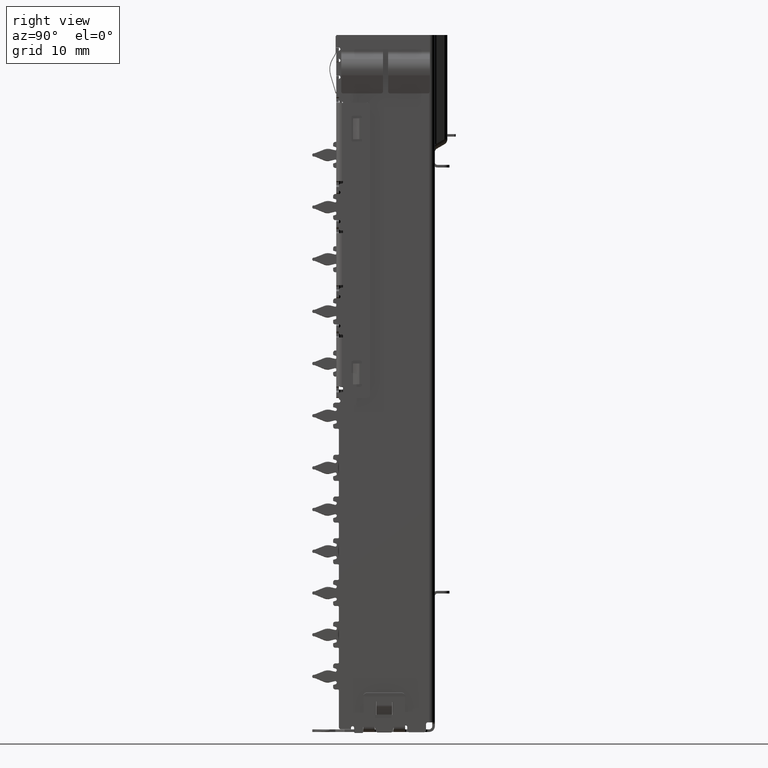
[diagram: clean part render]
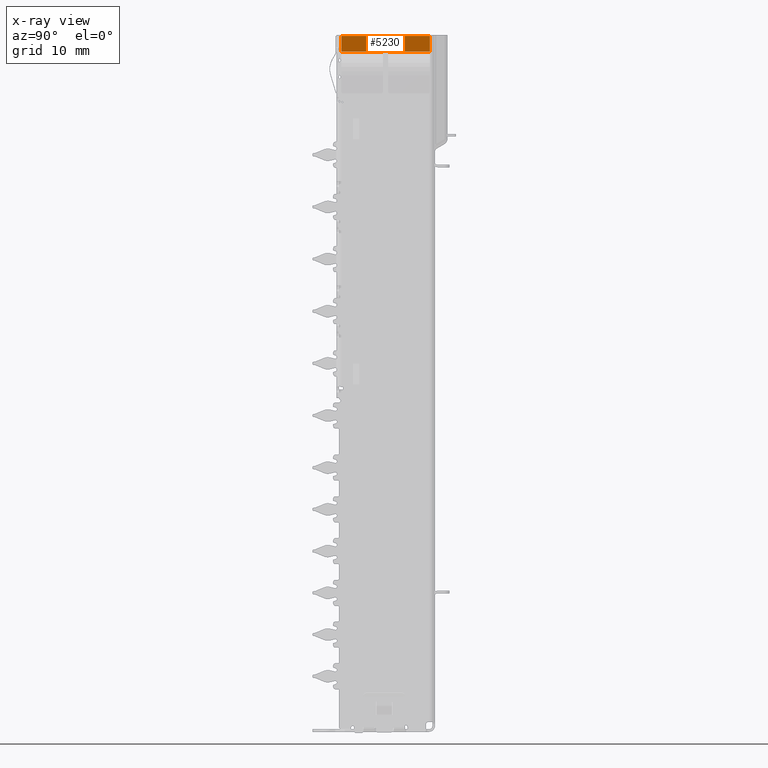
[diagram: x-ray — body ghosted, one internal face saturated and labeled with its STEP entity id]
A machine part, right view, then the same camera in x-ray: the body is ghosted and one INTERNAL B-rep face — a face not visible from any outside direction — is saturated and labeled: STEP entity #5230.
In plain terms, the highlighted planar face has unit normal (1, -0, -0).
Its self-contained STEP definition (entity closure, byte-faithful):
#96 = CARTESIAN_POINT ( 'NONE',  ( 6.700000000000001066, 0.0000000000000000000, -1.499999999999999556 ) ) ;
#986 = ORIENTED_EDGE ( 'NONE', *, *, #33960, .F. ) ;
#1887 = DIRECTION ( 'NONE',  ( -2.888894916580853437E-33, 1.000000000000000000, -6.162975822039154730E-33 ) ) ;
#1928 = VERTEX_POINT ( 'NONE', #31847 ) ;
#2055 = LINE ( 'NONE', #32435, #51634 ) ;
#2411 = VECTOR ( 'NONE', #28611, 1000.000000000000000 ) ;
#2728 = VERTEX_POINT ( 'NONE', #45399 ) ;
#2963 = EDGE_CURVE ( 'NONE', #15793, #49822, #25575, .T. ) ;
#2976 = ORIENTED_EDGE ( 'NONE', *, *, #56904, .F. ) ;
#3548 = LINE ( 'NONE', #12204, #33577 ) ;
#4764 = ORIENTED_EDGE ( 'NONE', *, *, #35933, .F. ) ;
#5015 = VECTOR ( 'NONE', #23570, 1000.000000000000000 ) ;
#5169 = VECTOR ( 'NONE', #17317, 1000.000000000000000 ) ;
#5230 = ADVANCED_FACE ( 'NONE', ( #43498 ), #42486, .F. ) ;
#6786 = CARTESIAN_POINT ( 'NONE',  ( -0.2499999999999985012, 0.0000000000000000000, -5.706862796132720739 ) ) ;
#7141 = LINE ( 'NONE', #14993, #5015 ) ;
#7291 = ORIENTED_EDGE ( 'NONE', *, *, #37775, .F. ) ;
#10346 = EDGE_LOOP ( 'NONE', ( #986, #45847, #4764, #7291, #24273, #2976, #49695, #12385 ) ) ;
#12204 = CARTESIAN_POINT ( 'NONE',  ( -4.249999999999996447, -8.673617379884035472E-16, -5.706862796132720739 ) ) ;
#12255 = VECTOR ( 'NONE', #40503, 1000.000000000000000 ) ;
#12385 = ORIENTED_EDGE ( 'NONE', *, *, #49535, .F. ) ;
#14993 = CARTESIAN_POINT ( 'NONE',  ( 6.700000000000001066, 0.0000000000000000000, -1.499999999999999556 ) ) ;
#15793 = VERTEX_POINT ( 'NONE', #16742 ) ;
#16742 = CARTESIAN_POINT ( 'NONE',  ( 0.2500000000000036637, 0.0000000000000000000, -1.500000000000000666 ) ) ;
#17317 = DIRECTION ( 'NONE',  ( -2.037560944591366943E-16, -6.162975822039154730E-33, -1.000000000000000000 ) ) ;
#18637 = CARTESIAN_POINT ( 'NONE',  ( 4.250000000000003553, 0.0000000000000000000, -1.499999999999999556 ) ) ;
#19169 = VERTEX_POINT ( 'NONE', #38175 ) ;
#19411 = CARTESIAN_POINT ( 'NONE',  ( -4.249999999999996447, 4.336808689942017736E-15, -1.499999999999997558 ) ) ;
#23570 = DIRECTION ( 'NONE',  ( -1.000000000000000000, 2.888894916580853780E-33, 0.0000000000000000000 ) ) ;
#24273 = ORIENTED_EDGE ( 'NONE', *, *, #57120, .F. ) ;
#25575 = LINE ( 'NONE', #29726, #32579 ) ;
#27452 = DIRECTION ( 'NONE',  ( 2.888894916580853437E-33, -1.000000000000000000, -6.162975822039154730E-33 ) ) ;
#27488 = LINE ( 'NONE', #39398, #5169 ) ;
#28611 = DIRECTION ( 'NONE',  ( -2.037560944591366943E-16, -6.162975822039154730E-33, -1.000000000000000000 ) ) ;
#29642 = CIRCLE ( 'NONE', #48624, 0.2500000000000002220 ) ;
#29726 = CARTESIAN_POINT ( 'NONE',  ( 0.2500000000000019429, 0.0000000000000000000, -5.706862796132720739 ) ) ;
#30616 = VERTEX_POINT ( 'NONE', #19411 ) ;
#31847 = CARTESIAN_POINT ( 'NONE',  ( -0.2499999999999985012, 0.0000000000000000000, -1.449999999999999067 ) ) ;
#32435 = CARTESIAN_POINT ( 'NONE',  ( 6.700000000000001066, -8.673617379884035472E-16, 0.0000000000000000000 ) ) ;
#32579 = VECTOR ( 'NONE', #56515, 1000.000000000000000 ) ;
#33273 = LINE ( 'NONE', #96, #12255 ) ;
#33577 = VECTOR ( 'NONE', #34090, 1000.000000000000000 ) ;
#33960 = EDGE_CURVE ( 'NONE', #19169, #55495, #27488, .T. ) ;
#34090 = DIRECTION ( 'NONE',  ( 2.037560944591366943E-16, 6.162975822039154730E-33, 1.000000000000000000 ) ) ;
#34676 = VERTEX_POINT ( 'NONE', #37585 ) ;
#35933 = EDGE_CURVE ( 'NONE', #30616, #2728, #3548, .T. ) ;
#37585 = CARTESIAN_POINT ( 'NONE',  ( -0.2499999999999967526, 0.0000000000000000000, -1.500000000000000444 ) ) ;
#37775 = EDGE_CURVE ( 'NONE', #34676, #30616, #33273, .T. ) ;
#37972 = DIRECTION ( 'NONE',  ( 0.0000000000000000000, 6.162975822039154730E-33, 1.000000000000000000 ) ) ;
#38175 = CARTESIAN_POINT ( 'NONE',  ( 4.250000000000001776, -8.673617379884035472E-16, 0.0000000000000000000 ) ) ;
#39398 = CARTESIAN_POINT ( 'NONE',  ( 4.250000000000000000, -8.673617379884035472E-16, -5.706862796132720739 ) ) ;
#40503 = DIRECTION ( 'NONE',  ( -1.000000000000000000, 2.888894916580853780E-33, 0.0000000000000000000 ) ) ;
#40565 = AXIS2_PLACEMENT_3D ( 'NONE', #55354, #1887, #37972 ) ;
#40963 = DIRECTION ( 'NONE',  ( 0.0000000000000000000, 6.162975822039154730E-33, 1.000000000000000000 ) ) ;
#42486 = PLANE ( 'NONE',  #40565 ) ;
#43498 = FACE_OUTER_BOUND ( 'NONE', #10346, .T. ) ;
#44230 = CARTESIAN_POINT ( 'NONE',  ( 0.2500000000000028311, 0.0000000000000000000, -1.449999999999999289 ) ) ;
#45270 = CARTESIAN_POINT ( 'NONE',  ( 1.734723475976807094E-15, 0.0000000000000000000, -1.449999999999999289 ) ) ;
#45399 = CARTESIAN_POINT ( 'NONE',  ( -4.249999999999998224, 5.204170427930421283E-15, 1.355252715606880543E-17 ) ) ;
#45693 = LINE ( 'NONE', #6786, #2411 ) ;
#45847 = ORIENTED_EDGE ( 'NONE', *, *, #50467, .T. ) ;
#48624 = AXIS2_PLACEMENT_3D ( 'NONE', #45270, #27452, #40963 ) ;
#49535 = EDGE_CURVE ( 'NONE', #55495, #15793, #7141, .T. ) ;
#49695 = ORIENTED_EDGE ( 'NONE', *, *, #2963, .F. ) ;
#49822 = VERTEX_POINT ( 'NONE', #44230 ) ;
#50467 = EDGE_CURVE ( 'NONE', #19169, #2728, #2055, .T. ) ;
#50610 = DIRECTION ( 'NONE',  ( -1.000000000000000000, 2.888894916580853780E-33, 0.0000000000000000000 ) ) ;
#51634 = VECTOR ( 'NONE', #50610, 1000.000000000000000 ) ;
#55354 = CARTESIAN_POINT ( 'NONE',  ( 6.700000000000001066, -8.673617379884035472E-16, 0.0000000000000000000 ) ) ;
#55495 = VERTEX_POINT ( 'NONE', #18637 ) ;
#56515 = DIRECTION ( 'NONE',  ( 2.037560944591366943E-16, 6.162975822039154730E-33, 1.000000000000000000 ) ) ;
#56904 = EDGE_CURVE ( 'NONE', #49822, #1928, #29642, .T. ) ;
#57120 = EDGE_CURVE ( 'NONE', #1928, #34676, #45693, .T. ) ;